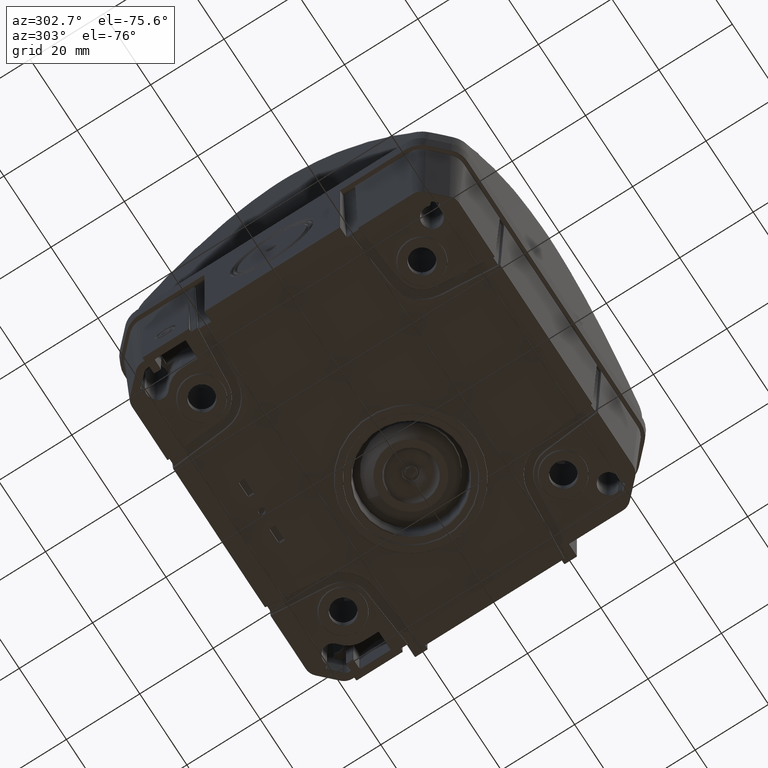
[diagram: clean part render]
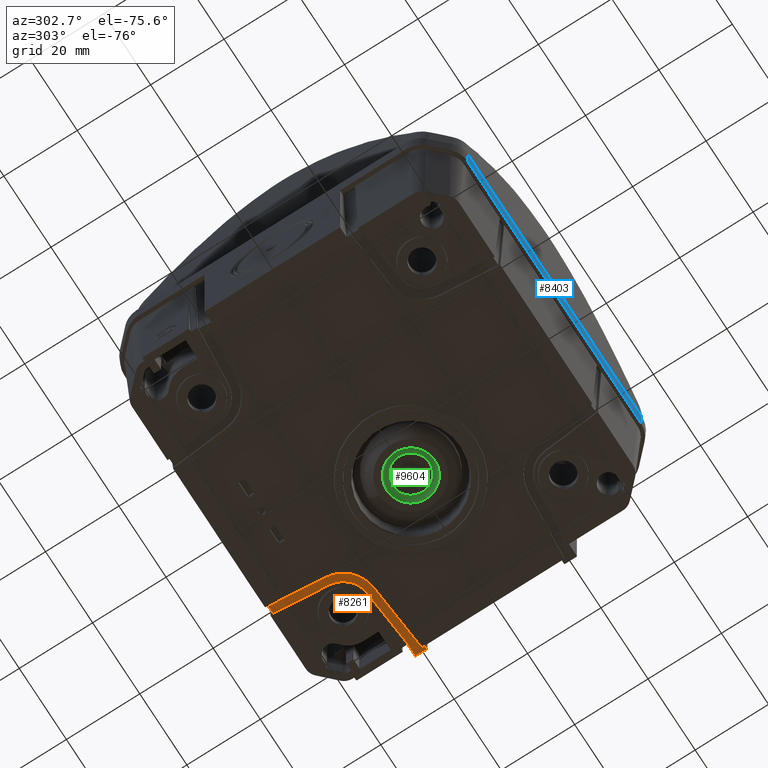
[diagram: same view with three faces highlighted in distinct colors, each labeled with its STEP entity id]
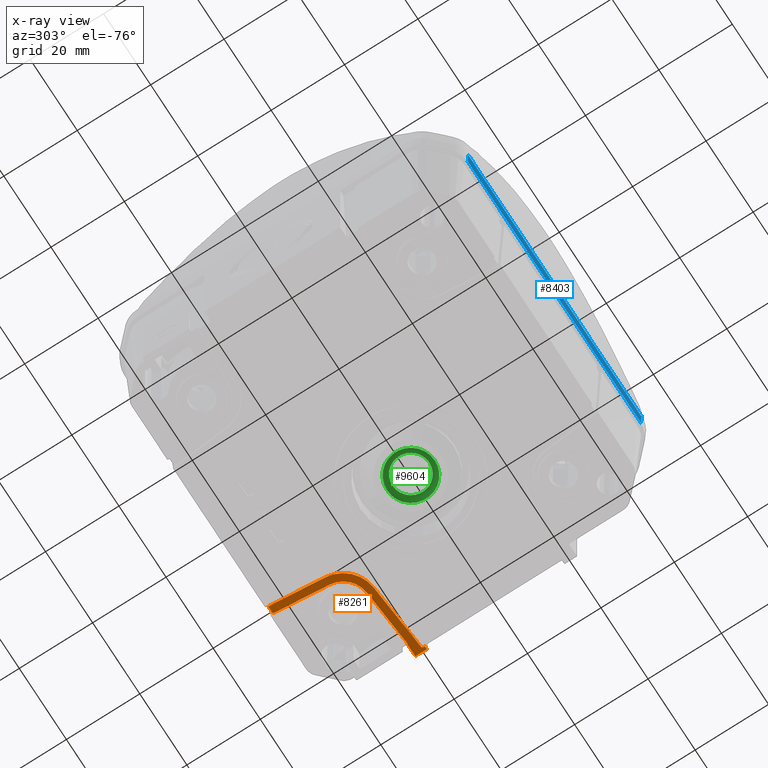
[diagram: x-ray of the same camera — body ghosted, the three highlighted faces saturated]
A machine part, auxiliary view with three faces highlighted in distinct colors.
The next image is the same camera in x-ray (body ghosted, the three faces saturated) — at least one of them is partly hidden behind the body in this view.
Their STEP definitions:

[orange] entity #8261 — the highlighted planar face has unit normal (0, 0, -1).
#427=ELLIPSE('',#32906,0.400015347936899,0.4);
#1960=B_SPLINE_CURVE_WITH_KNOTS('',3,(#54855,#54856,#54857,#54858),.UNSPECIFIED.,
 .F.,.F.,(4,4),(0.,1.),.UNSPECIFIED.);
#1961=B_SPLINE_CURVE_WITH_KNOTS('',3,(#54866,#54867,#54868,#54869,#54870,
#54871,#54872,#54873,#54874,#54875,#54876,#54877,#54878,#54879,#54880,#54881,
#54882,#54883,#54884),.UNSPECIFIED.,.F.,.F.,(4,3,3,3,3,3,4),(0.,0.228589873850687,
0.43035940561687,0.578701581728228,0.727875121153951,0.864113466645832,1.),
 .UNSPECIFIED.);
#1962=B_SPLINE_CURVE_WITH_KNOTS('',3,(#54886,#54887,#54888,#54889),.UNSPECIFIED.,
 .F.,.F.,(4,4),(0.,1.),.UNSPECIFIED.);
#2529=PLANE('',#32908);
#4881=LINE('',#54852,#6572);
#4882=LINE('',#54860,#6573);
#4883=LINE('',#54864,#6574);
#4884=LINE('',#54891,#6575);
#4885=LINE('',#54893,#6576);
#4886=LINE('',#54895,#6577);
#4887=LINE('',#54897,#6578);
#4888=LINE('',#54901,#6579);
#4889=LINE('',#54905,#6580);
#6572=VECTOR('',#38159,1.);
#6573=VECTOR('',#38160,1.);
#6574=VECTOR('',#38163,1.);
#6575=VECTOR('',#38164,1.);
#6576=VECTOR('',#38165,1.);
#6577=VECTOR('',#38166,1.);
#6578=VECTOR('',#38167,1.);
#6579=VECTOR('',#38170,1.);
#6580=VECTOR('',#38173,1.);
#8261=ADVANCED_FACE('',(#10405),#2529,.T.);
#10405=FACE_OUTER_BOUND('',#12412,.T.);
#12412=EDGE_LOOP('',(#17040,#17041,#17042,#17043,#17044,#17045,#17046,#17047,
#17048,#17049,#17050,#17051,#17052,#17053,#17054));
#17040=ORIENTED_EDGE('',*,*,#27348,.T.);
#17041=ORIENTED_EDGE('',*,*,#27349,.T.);
#17042=ORIENTED_EDGE('',*,*,#27350,.F.);
#17043=ORIENTED_EDGE('',*,*,#27351,.F.);
#17044=ORIENTED_EDGE('',*,*,#27352,.F.);
#17045=ORIENTED_EDGE('',*,*,#27353,.T.);
#17046=ORIENTED_EDGE('',*,*,#27354,.F.);
#17047=ORIENTED_EDGE('',*,*,#27355,.T.);
#17048=ORIENTED_EDGE('',*,*,#27356,.T.);
#17049=ORIENTED_EDGE('',*,*,#27357,.T.);
#17050=ORIENTED_EDGE('',*,*,#27358,.T.);
#17051=ORIENTED_EDGE('',*,*,#27359,.F.);
#17052=ORIENTED_EDGE('',*,*,#27360,.T.);
#17053=ORIENTED_EDGE('',*,*,#27361,.T.);
#17054=ORIENTED_EDGE('',*,*,#27362,.T.);
#24127=VERTEX_POINT('',#54853);
#24128=VERTEX_POINT('',#54854);
#24129=VERTEX_POINT('',#54859);
#24130=VERTEX_POINT('',#54861);
#24131=VERTEX_POINT('',#54863);
#24132=VERTEX_POINT('',#54865);
#24133=VERTEX_POINT('',#54885);
#24134=VERTEX_POINT('',#54890);
#24135=VERTEX_POINT('',#54892);
#24136=VERTEX_POINT('',#54894);
#24137=VERTEX_POINT('',#54896);
#24138=VERTEX_POINT('',#54898);
#24139=VERTEX_POINT('',#54900);
#24140=VERTEX_POINT('',#54902);
#24141=VERTEX_POINT('',#54904);
#27348=EDGE_CURVE('',#24127,#24128,#4881,.T.);
#27349=EDGE_CURVE('',#24128,#24129,#1960,.T.);
#27350=EDGE_CURVE('',#24130,#24129,#4882,.T.);
#27351=EDGE_CURVE('',#24131,#24130,#30637,.T.);
#27352=EDGE_CURVE('',#24132,#24131,#4883,.T.);
#27353=EDGE_CURVE('',#24132,#24133,#1961,.T.);
#27354=EDGE_CURVE('',#24134,#24133,#1962,.T.);
#27355=EDGE_CURVE('',#24134,#24135,#4884,.T.);
#27356=EDGE_CURVE('',#24135,#24136,#4885,.T.);
#27357=EDGE_CURVE('',#24136,#24137,#4886,.T.);
#27358=EDGE_CURVE('',#24137,#24138,#4887,.T.);
#27359=EDGE_CURVE('',#24139,#24138,#427,.T.);
#27360=EDGE_CURVE('',#24139,#24140,#4888,.T.);
#27361=EDGE_CURVE('',#24140,#24141,#30638,.T.);
#27362=EDGE_CURVE('',#24141,#24127,#4889,.T.);
#30637=CIRCLE('',#32905,6.90436343389538);
#30638=CIRCLE('',#32907,8.89737432398563);
#32905=AXIS2_PLACEMENT_3D('',#54862,#38161,#38162);
#32906=AXIS2_PLACEMENT_3D('',#54899,#38168,#38169);
#32907=AXIS2_PLACEMENT_3D('',#54903,#38171,#38172);
#32908=AXIS2_PLACEMENT_3D('',#54906,#38174,#38175);
#38159=DIRECTION('',(1.,-3.85494105772625E-015,0.));
#38160=DIRECTION('',(-0.0871557427476579,0.996194698091746,0.));
#38161=DIRECTION('',(0.,0.,-1.));
#38162=DIRECTION('',(0.,1.,0.));
#38163=DIRECTION('',(-0.996194698091746,0.0871557427476584,0.));
#38164=DIRECTION('',(1.,0.,0.));
#38165=DIRECTION('',(0.,-1.,0.));
#38166=DIRECTION('',(-1.,0.,0.));
#38167=DIRECTION('',(0.,1.,0.));
#38168=DIRECTION('',(0.,0.,-1.));
#38169=DIRECTION('',(0.,1.,0.));
#38170=DIRECTION('',(-0.996194698091746,0.0871557427476583,0.));
#38171=DIRECTION('',(0.,0.,-1.));
#38172=DIRECTION('',(0.,1.,0.));
#38173=DIRECTION('',(-0.0871557427476579,0.996194698091746,0.));
#38174=DIRECTION('',(0.,0.,-1.));
#38175=DIRECTION('',(0.,-1.,0.));
#54852=CARTESIAN_POINT('',(29.4,44.5274918501145,-119.5));
#54853=CARTESIAN_POINT('',(19.2501415032997,44.5274918501146,-119.5));
#54854=CARTESIAN_POINT('',(21.0517457995373,44.5274918501146,-119.5));
#54855=CARTESIAN_POINT('',(21.0517457995373,44.5274918501146,-119.5));
#54856=CARTESIAN_POINT('',(21.1897672881771,44.4107638910372,-119.5));
#54857=CARTESIAN_POINT('',(21.2671636796556,44.327029628219,-119.5));
#54858=CARTESIAN_POINT('',(21.2794586908147,44.1995257063176,-119.5));
#54859=CARTESIAN_POINT('',(21.2794586908147,44.1995257063176,-119.5));
#54860=CARTESIAN_POINT('',(24.898748713642,2.83085144653991,-119.5));
#54861=CARTESIAN_POINT('',(22.5219097534549,29.9982450767191,-119.5));
#54862=CARTESIAN_POINT('',(29.4,30.6,-119.5));
#54863=CARTESIAN_POINT('',(28.7982450767191,23.7219097534549,-119.5));
#54864=CARTESIAN_POINT('',(1.63085144653991,26.098748713642,-119.5));
#54865=CARTESIAN_POINT('',(43.8384526444629,22.4060620942005,-119.5));
#54866=CARTESIAN_POINT('',(43.8384526444629,22.4060620942005,-119.5));
#54867=CARTESIAN_POINT('',(43.8715970126878,22.403162337721,-119.5));
#54868=CARTESIAN_POINT('',(43.9059197877844,22.4065472889606,-119.5));
#54869=CARTESIAN_POINT('',(43.93774412527,22.4162513745057,-119.5));
#54870=CARTESIAN_POINT('',(43.9658864823409,22.4248327264532,-119.5));
#54871=CARTESIAN_POINT('',(43.9930911625803,22.4385923961299,-119.5));
#54872=CARTESIAN_POINT('',(44.0160341127892,22.4570112152687,-119.5));
#54873=CARTESIAN_POINT('',(44.0330043601995,22.470635091664,-119.5));
#54874=CARTESIAN_POINT('',(44.0480521737593,22.487182147069,-119.5));
#54875=CARTESIAN_POINT('',(44.059631387822,22.505608245595,-119.5));
#54876=CARTESIAN_POINT('',(44.0712498868477,22.5240968586054,-119.5));
#54877=CARTESIAN_POINT('',(44.0796891198924,22.5450414581374,-119.5));
#54878=CARTESIAN_POINT('',(44.0838400652981,22.5664794613769,-119.5));
#54879=CARTESIAN_POINT('',(44.0876380591114,22.5860946082203,-119.5));
#54880=CARTESIAN_POINT('',(44.0879443772039,22.6067013088871,-119.5));
#54881=CARTESIAN_POINT('',(44.0846781347463,22.6264119761236,-119.5));
#54882=CARTESIAN_POINT('',(44.0814169569366,22.6460920799255,-119.5));
#54883=CARTESIAN_POINT('',(44.0745105998415,22.6654112297729,-119.5));
#54884=CARTESIAN_POINT('',(44.0649135763803,22.6828994803156,-119.5));
#54885=CARTESIAN_POINT('',(44.0646044070683,22.6827298175393,-119.5));
#54886=CARTESIAN_POINT('',(44.2137673600374,22.5,-119.5));
#54887=CARTESIAN_POINT('',(44.1598691352112,22.5539200323682,-119.5));
#54888=CARTESIAN_POINT('',(44.1061526931663,22.6051826126536,-119.499388358045));
#54889=CARTESIAN_POINT('',(44.0640337341292,22.6824197818418,-119.499633714648));
#54890=CARTESIAN_POINT('',(44.2137673600374,22.5,-119.5));
#54891=CARTESIAN_POINT('',(29.4,22.5,-119.5));
#54892=CARTESIAN_POINT('',(47.4,22.5,-119.5));
#54893=CARTESIAN_POINT('',(47.4,30.6,-119.5));
#54894=CARTESIAN_POINT('',(47.4,19.4,-119.5));
#54895=CARTESIAN_POINT('',(46.4,19.4,-119.5));
#54896=CARTESIAN_POINT('',(46.6,19.4,-119.5));
#54897=CARTESIAN_POINT('',(46.6,19.9823122999188,-119.5));
#54898=CARTESIAN_POINT('',(46.6,19.7972863797459,-119.5));
#54899=CARTESIAN_POINT('',(46.2,19.7972863797459,-119.5));
#54900=CARTESIAN_POINT('',(46.2348609696496,20.195779664655,-119.5));
#54901=CARTESIAN_POINT('',(28.6245427322891,21.7364828715079,-119.5));
#54902=CARTESIAN_POINT('',(28.6245427322891,21.7364828715079,-119.5));
#54903=CARTESIAN_POINT('',(29.4,30.6,-119.5));
#54904=CARTESIAN_POINT('',(20.5364828715079,29.8245427322891,-119.5));
#54905=CARTESIAN_POINT('',(20.5364828715079,29.8245427322891,-119.5));
#54906=CARTESIAN_POINT('',(29.4,30.6,-119.5));

[blue] entity #8403 — the highlighted planar face has unit normal (0, -0.9994, -0.0349).
#2661=PLANE('',#33226);
#5400=LINE('',#57241,#7091);
#5401=LINE('',#57244,#7092);
#5402=LINE('',#57246,#7093);
#5403=LINE('',#57248,#7094);
#7091=VECTOR('',#39320,1.);
#7092=VECTOR('',#39321,1.);
#7093=VECTOR('',#39322,1.);
#7094=VECTOR('',#39323,1.);
#8403=ADVANCED_FACE('',(#10536),#2661,.T.);
#10536=FACE_OUTER_BOUND('',#12569,.T.);
#12569=EDGE_LOOP('',(#17973,#17974,#17975,#17976));
#17973=ORIENTED_EDGE('',*,*,#28121,.T.);
#17974=ORIENTED_EDGE('',*,*,#28122,.T.);
#17975=ORIENTED_EDGE('',*,*,#28123,.T.);
#17976=ORIENTED_EDGE('',*,*,#28124,.T.);
#24797=VERTEX_POINT('',#57242);
#24798=VERTEX_POINT('',#57243);
#24799=VERTEX_POINT('',#57245);
#24800=VERTEX_POINT('',#57247);
#28121=EDGE_CURVE('',#24797,#24798,#5400,.T.);
#28122=EDGE_CURVE('',#24798,#24799,#5401,.T.);
#28123=EDGE_CURVE('',#24799,#24800,#5402,.T.);
#28124=EDGE_CURVE('',#24800,#24797,#5403,.T.);
#33226=AXIS2_PLACEMENT_3D('',#57249,#39324,#39325);
#39320=DIRECTION('',(0.014454334661424,-0.0348958507746892,0.999286421306827));
#39321=DIRECTION('',(-1.,0.,0.));
#39322=DIRECTION('',(0.014454334661424,0.0348958507746892,-0.999286421306827));
#39323=DIRECTION('',(1.,0.,0.));
#39324=DIRECTION('',(0.,-0.999390827019096,-0.034899496702501));
#39325=DIRECTION('',(0.,-0.034899496702501,0.999390827019096));
#57241=CARTESIAN_POINT('',(36.2516773940557,-46.381408265745,-80.5323976110959));
#57242=CARTESIAN_POINT('',(36.1753823739615,-46.1972157934919,-85.8069798993405));
#57243=CARTESIAN_POINT('',(36.2556359761427,-46.3909651283071,-80.2587248741756));
#57244=CARTESIAN_POINT('',(-0.600000000000005,-46.3909651283071,-80.2587248741756));
#57245=CARTESIAN_POINT('',(-37.4556359761427,-46.3909651283071,-80.2587248741756));
#57246=CARTESIAN_POINT('',(-37.4516773940557,-46.381408265745,-80.5323976110959));
#57247=CARTESIAN_POINT('',(-37.3753823739615,-46.1972157934919,-85.8069798993405));
#57248=CARTESIAN_POINT('',(-0.600000000000005,-46.1972157934919,-85.8069798993405));
#57249=CARTESIAN_POINT('',(-0.600000000000005,-46.4,-80.));

[green] entity #9604 — the highlighted toroidal blend (fillet) surface has major radius 4.6833 mm and minor (blend) radius 2 mm.
#3449=FACE_BOUND('',#13912,.T.);
#3450=FACE_BOUND('',#13913,.T.);
#9604=ADVANCED_FACE('',(#3449,#3450),#9864,.F.);
#9864=TOROIDAL_SURFACE('',#35256,4.68332340407365,2.);
#13912=EDGE_LOOP('',(#22630));
#13913=EDGE_LOOP('',(#22631));
#22630=ORIENTED_EDGE('',*,*,#29973,.T.);
#22631=ORIENTED_EDGE('',*,*,#29974,.F.);
#25554=VERTEX_POINT('',#67882);
#25555=VERTEX_POINT('',#67885);
#29973=EDGE_CURVE('',#25554,#25554,#31789,.T.);
#29974=EDGE_CURVE('',#25555,#25555,#31790,.T.);
#31789=CIRCLE('',#35253,6.54533104054492);
#31790=CIRCLE('',#35255,5.02109508550971);
#35253=AXIS2_PLACEMENT_3D('',#67881,#43821,#43822);
#35255=AXIS2_PLACEMENT_3D('',#67884,#43825,#43826);
#35256=AXIS2_PLACEMENT_3D('',#67886,#43827,#43828);
#43821=DIRECTION('',(0.,0.,-1.));
#43822=DIRECTION('',(0.,1.,0.));
#43825=DIRECTION('',(0.,0.,-1.));
#43826=DIRECTION('',(0.,1.,0.));
#43827=DIRECTION('',(0.,0.,-1.));
#43828=DIRECTION('',(0.,-1.,0.));
#67881=CARTESIAN_POINT('',(11.4,0.600000000000022,-116.841252359706));
#67882=CARTESIAN_POINT('',(11.4,7.14533104054494,-116.841252359706));
#67884=CARTESIAN_POINT('',(11.4,0.600000000000022,-115.6));
#67885=CARTESIAN_POINT('',(11.4,5.62109508550973,-115.6));
#67886=CARTESIAN_POINT('',(11.4,0.600000000000022,-117.571271237354));